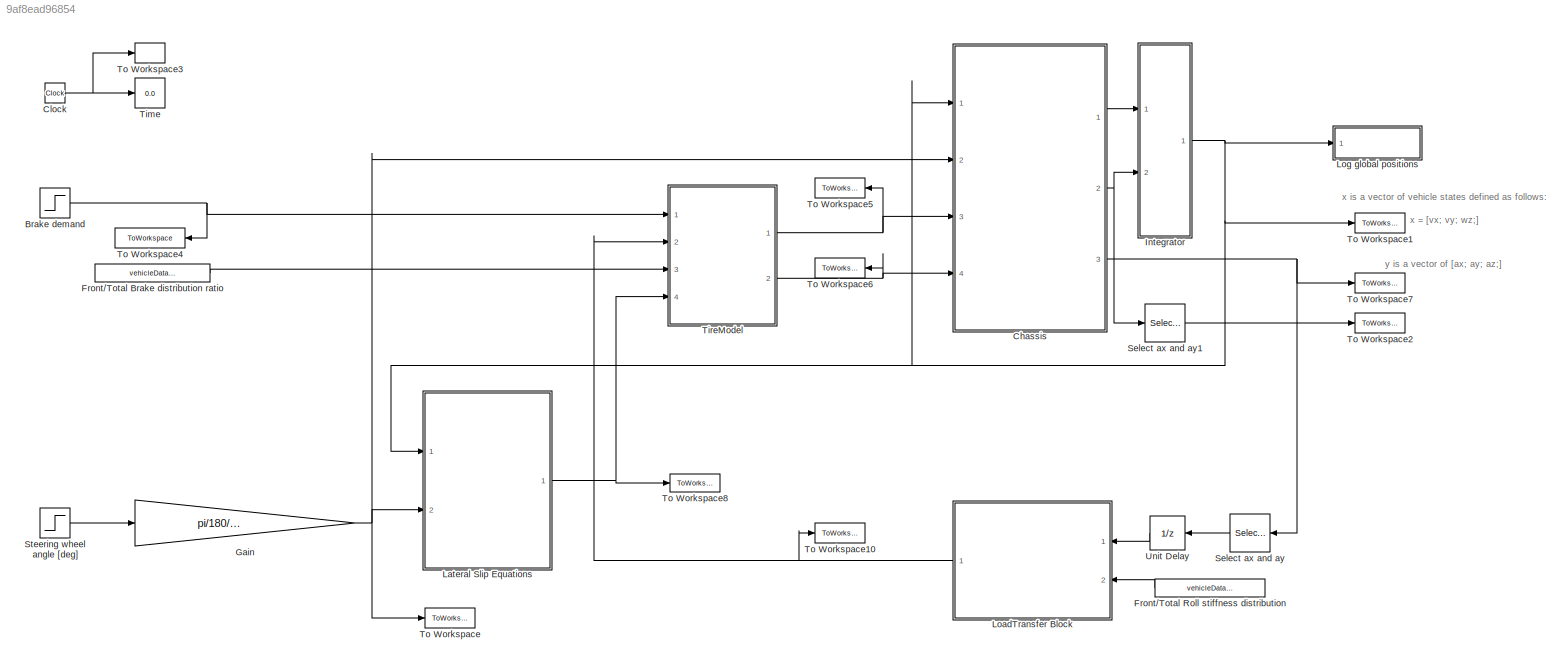
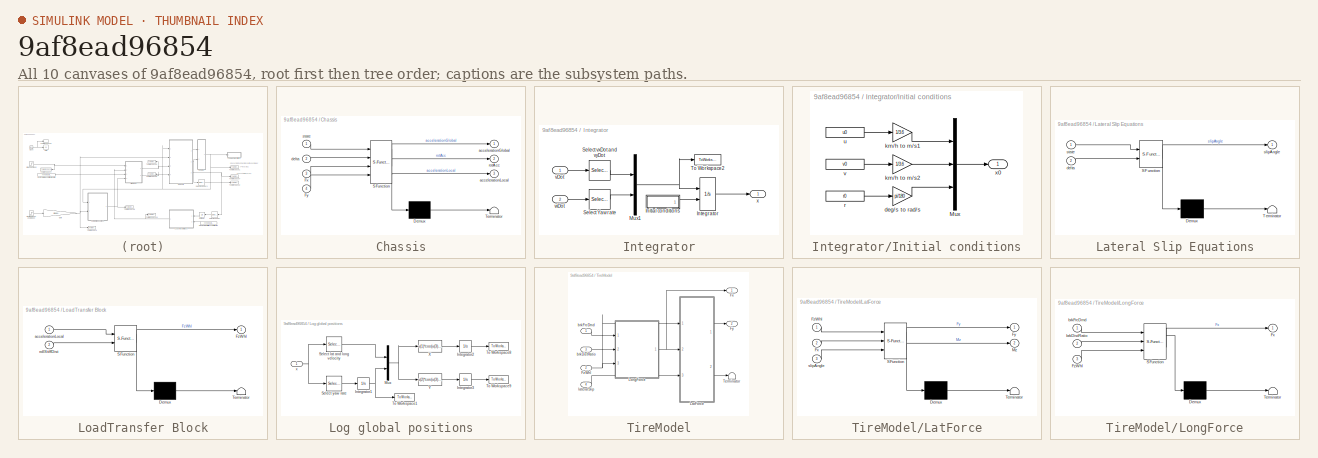
[diagram: thumbnail index - all 10 canvases of the model, root first then tree order]
MODEL slx_9af8ead96854
KIND model
CONFIG AbsTol = auto
CONFIG EnableMultiTasking = on
CONFIG FixedStep = sampleTime
CONFIG InitFcn = cd(fileparts(which(gcs)))\n\nrun ./InitModel.m;
CONFIG MaxStep = auto
CONFIG MinStep = auto
CONFIG RelTol = 1e-3
CONFIG SampleTimeConstraint = Unconstrained
CONFIG SolverName = ode1
CONFIG StartTime = 0.0
CONFIG StopFcn = run ./DrawPath.m;
CONFIG StopTime = simulationTime
BLOCK [Step] Brake demand
  After = vehicleData.brakeDemand
  SampleTime = 0
  Time = 3
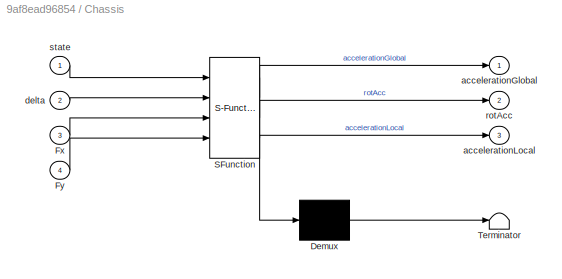
BLOCK [SubSystem] Chassis
  ErrorFcn = Stateflow.Translate.translate
  PermitHierarchicalResolution = ExplicitOnly
  Ports = [4, 3]
  RequestExecContextInheritance = off
  SFBlockType = MATLAB Function
  TreatAsAtomicUnit = on
BLOCK [Demux] Chassis/ Demux 
  Outputs = 1
  Ports = [1, 1]
BLOCK [S-Function] Chassis/ SFunction 
  EnableBusSupport = off
  FunctionName = sf_sfun
  Parameters = vehicleData
  PortCounts = [4 4]
  Ports = [4, 4]
  SFcnIsStateOwnerBlock = off
  SFunctionDeploymentMode = off
  Tag = Stateflow S-Function 21
BLOCK [Terminator] Chassis/ Terminator 
BLOCK [Inport] Chassis/Fx
  Port = 3
BLOCK [Inport] Chassis/Fy
  Port = 4
BLOCK [Outport] Chassis/accelerationGlobal
  VectorParamsAs1DForOutWhenUnconnected = off
BLOCK [Outport] Chassis/accelerationLocal
  Port = 3
  VectorParamsAs1DForOutWhenUnconnected = off
BLOCK [Inport] Chassis/delta
  Port = 2
BLOCK [Outport] Chassis/rotAcc
  Port = 2
  VectorParamsAs1DForOutWhenUnconnected = off
BLOCK [Inport] Chassis/state
BLOCK [Clock] Clock
BLOCK [Constant] Front//Total Brake distribution ratio
  Value = vehicleData.brakeDist
BLOCK [Constant] Front//Total Roll stiffness distribution
  Value = vehicleData.pRollDist
BLOCK [Gain] Gain
  Gain = pi/180/vehicleData.steeringRatio
BLOCK [SubSystem] Integrator
  Ports = [2, 1]
  RequestExecContextInheritance = off
BLOCK [SubSystem] Integrator/Initial conditions
  NameLocation = top
  Ports = [0, 1]
  RequestExecContextInheritance = off
BLOCK [Mux] Integrator/Initial conditions/Mux
  DisplayOption = bar
  Inputs = 3
  Ports = [3, 1]
BLOCK [Gain] Integrator/Initial conditions/deg//s to rad//s
  Gain = pi/180
BLOCK [Gain] Integrator/Initial conditions/km//h to m//s1
  Gain = 1/3.6
BLOCK [Gain] Integrator/Initial conditions/km//h to m//s2
  Gain = 1/3.6
BLOCK [Constant] Integrator/Initial conditions/r
  Value = r0
BLOCK [Constant] Integrator/Initial conditions/u
  Value = u0
BLOCK [Constant] Integrator/Initial conditions/v
  Value = v0
BLOCK [Outport] Integrator/Initial conditions/x0
  VectorParamsAs1DForOutWhenUnconnected = off
BLOCK [Integrator] Integrator/Integrator
  InitialConditionSource = external
  Ports = [2, 1]
BLOCK [Mux] Integrator/Mux1
  DisplayOption = bar
  Inputs = 2
  Ports = [2, 1]
BLOCK [Selector] Integrator/Select Yaw rate
  IndexOptions = Index vector (dialog)
  Indices = [3]
  InputPortWidth = 3
  OutputSizes = 1
  Ports = [1, 1]
BLOCK [Selector] Integrator/Select vxDot and vyDot
  IndexOptions = Index vector (dialog)
  Indices = [1 2]
  InputPortWidth = 3
  OutputSizes = 1
  Ports = [1, 1]
BLOCK [ToWorkspace] Integrator/To Workspace2
  MaxDataPoints = inf
  Ports = [1]
  SampleTime = sampleTime
  VariableName = dx
BLOCK [Inport] Integrator/vDot
BLOCK [Inport] Integrator/wDot
  Port = 2
BLOCK [Outport] Integrator/x
  VectorParamsAs1DForOutWhenUnconnected = off
BLOCK [SubSystem] Lateral Slip Equations
  ErrorFcn = Stateflow.Translate.translate
  PermitHierarchicalResolution = ExplicitOnly
  Ports = [2, 1]
  RequestExecContextInheritance = off
  SFBlockType = MATLAB Function
  TreatAsAtomicUnit = on
BLOCK [Demux] Lateral Slip Equations/ Demux 
  Outputs = 1
  Ports = [1, 1]
BLOCK [S-Function] Lateral Slip Equations/ SFunction 
  EnableBusSupport = off
  FunctionName = sf_sfun
  Parameters = vehicleData
  PortCounts = [2 2]
  Ports = [2, 2]
  SFcnIsStateOwnerBlock = off
  SFunctionDeploymentMode = off
  Tag = Stateflow S-Function 22
BLOCK [Terminator] Lateral Slip Equations/ Terminator 
BLOCK [Inport] Lateral Slip Equations/delta
  Port = 2
BLOCK [Outport] Lateral Slip Equations/slipAngle
  VectorParamsAs1DForOutWhenUnconnected = off
BLOCK [Inport] Lateral Slip Equations/state
BLOCK [SubSystem] LoadTransfer Block
  ErrorFcn = Stateflow.Translate.translate
  PermitHierarchicalResolution = ExplicitOnly
  Ports = [2, 1]
  RequestExecContextInheritance = off
  SFBlockType = MATLAB Function
  TreatAsAtomicUnit = on
BLOCK [Demux] LoadTransfer Block/ Demux 
  Outputs = 1
  Ports = [1, 1]
BLOCK [S-Function] LoadTransfer Block/ SFunction 
  EnableBusSupport = off
  FunctionName = sf_sfun
  Parameters = vehicleData
  PortCounts = [2 2]
  Ports = [2, 2]
  SFcnIsStateOwnerBlock = off
  SFunctionDeploymentMode = off
  Tag = Stateflow S-Function 23
BLOCK [Terminator] LoadTransfer Block/ Terminator 
BLOCK [Outport] LoadTransfer Block/FzWhl
  VectorParamsAs1DForOutWhenUnconnected = off
BLOCK [Inport] LoadTransfer Block/accelerationLocal
BLOCK [Inport] LoadTransfer Block/rollStiffDist
  Port = 2
BLOCK [SubSystem] Log global positions
  Ports = [1]
  RequestExecContextInheritance = off
BLOCK [Integrator] Log global positions/Integrator1
  Ports = [1, 1]
BLOCK [Integrator] Log global positions/Integrator2
  Ports = [1, 1]
BLOCK [Integrator] Log global positions/Integrator3
  Ports = [1, 1]
BLOCK [Mux] Log global positions/Mux
  DisplayOption = bar
  Inputs = 2
  Ports = [2, 1]
BLOCK [Selector] Log global positions/Select lat and long velocity
  IndexOptions = Index vector (dialog)
  Indices = [1 2]
  InputPortWidth = 3
  OutputSizes = 1
  Ports = [1, 1]
BLOCK [Selector] Log global positions/Select yaw rate
  IndexOptions = Index vector (dialog)
  Indices = 3
  InputPortWidth = 3
  OutputSizes = 1
  Ports = [1, 1]
BLOCK [ToWorkspace] Log global positions/To Workspace1
  MaxDataPoints = inf
  Ports = [1]
  SampleTime = sampleTime
  VariableName = psi
BLOCK [ToWorkspace] Log global positions/To Workspace8
  MaxDataPoints = inf
  Ports = [1]
  SampleTime = sampleTime
  VariableName = X
BLOCK [ToWorkspace] Log global positions/To Workspace9
  MaxDataPoints = inf
  Ports = [1]
  SampleTime = sampleTime
  VariableName = Y
BLOCK [Fcn] Log global positions/X
  Expr = u(1)*cos(u(3)) - u(2)*sin(u(3))
BLOCK [Fcn] Log global positions/Y
  Expr = u(2)*cos(u(3)) + u(1)*sin(u(3))
BLOCK [Inport] Log global positions/x
BLOCK [Selector] Select ax and ay
  IndexOptions = Index vector (dialog)
  Indices = [1 2]
  InputPortWidth = 3
  OutputSizes = 1
  Ports = [1, 1]
BLOCK [Selector] Select ax and ay1
  IndexOptions = Index vector (dialog)
  Indices = [3]
  InputPortWidth = 3
  OutputSizes = 1
  Ports = [1, 1]
BLOCK [Step] Steering wheel angle [deg]
  After = SWA
  SampleTime = 0
  Time = 3
BLOCK [Display] Time
  Decimation = 1
  Ports = [1]
BLOCK [SubSystem] TireModel
  Ports = [4, 2]
  RequestExecContextInheritance = off
BLOCK [Outport] TireModel/Fx
  VectorParamsAs1DForOutWhenUnconnected = off
BLOCK [Outport] TireModel/Fy
  Port = 2
  VectorParamsAs1DForOutWhenUnconnected = off
BLOCK [Inport] TireModel/FzWhl
  Port = 2
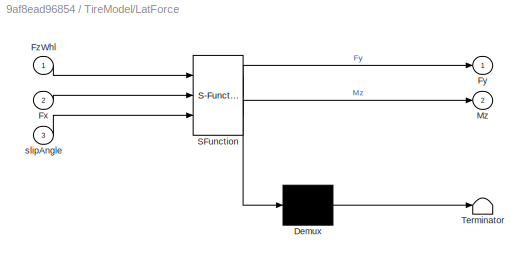
BLOCK [SubSystem] TireModel/LatForce
  ErrorFcn = Stateflow.Translate.translate
  PermitHierarchicalResolution = ExplicitOnly
  Ports = [3, 2]
  RequestExecContextInheritance = off
  SFBlockType = MATLAB Function
  TreatAsAtomicUnit = on
BLOCK [Demux] TireModel/LatForce/ Demux 
  Outputs = 1
  Ports = [1, 1]
BLOCK [S-Function] TireModel/LatForce/ SFunction 
  EnableBusSupport = off
  FunctionName = sf_sfun
  Parameters = vehicleData
  PortCounts = [3 3]
  Ports = [3, 3]
  SFcnIsStateOwnerBlock = off
  SFunctionDeploymentMode = off
  Tag = Stateflow S-Function 2
BLOCK [Terminator] TireModel/LatForce/ Terminator 
BLOCK [Inport] TireModel/LatForce/Fx
  Port = 2
BLOCK [Outport] TireModel/LatForce/Fy
  VectorParamsAs1DForOutWhenUnconnected = off
BLOCK [Inport] TireModel/LatForce/FzWhl
BLOCK [Outport] TireModel/LatForce/Mz
  Port = 2
  VectorParamsAs1DForOutWhenUnconnected = off
BLOCK [Inport] TireModel/LatForce/slipAngle
  Port = 3
BLOCK [SubSystem] TireModel/LongForce
  ErrorFcn = Stateflow.Translate.translate
  PermitHierarchicalResolution = ExplicitOnly
  Ports = [3, 1]
  RequestExecContextInheritance = off
  SFBlockType = MATLAB Function
  TreatAsAtomicUnit = on
BLOCK [Demux] TireModel/LongForce/ Demux 
  Outputs = 1
  Ports = [1, 1]
BLOCK [S-Function] TireModel/LongForce/ SFunction 
  EnableBusSupport = off
  FunctionName = sf_sfun
  PortCounts = [3 2]
  Ports = [3, 2]
  SFcnIsStateOwnerBlock = off
  SFunctionDeploymentMode = off
  Tag = Stateflow S-Function 1
BLOCK [Terminator] TireModel/LongForce/ Terminator 
BLOCK [Outport] TireModel/LongForce/Fx
  VectorParamsAs1DForOutWhenUnconnected = off
BLOCK [Inport] TireModel/LongForce/FzWhl
  Port = 3
BLOCK [Inport] TireModel/LongForce/brkDistRatio
  Port = 2
BLOCK [Inport] TireModel/LongForce/brkFrcDmd
BLOCK [Terminator] TireModel/Terminator
BLOCK [Inport] TireModel/brkDistRatio
  Port = 3
BLOCK [Inport] TireModel/brkFrcDmd
BLOCK [Inport] TireModel/lateralSlip
  Port = 4
BLOCK [ToWorkspace] To Workspace
  MaxDataPoints = inf
  Ports = [1]
  SampleTime = sampleTime
  VariableName = delta
BLOCK [ToWorkspace] To Workspace1
  MaxDataPoints = inf
  Ports = [1]
  SampleTime = sampleTime
  VariableName = x
BLOCK [ToWorkspace] To Workspace10
  MaxDataPoints = inf
  Ports = [1]
  SampleTime = sampleTime
  VariableName = FzWheel
BLOCK [ToWorkspace] To Workspace2
  MaxDataPoints = inf
  Ports = [1]
  SampleTime = sampleTime
  VariableName = psip2
BLOCK [ToWorkspace] To Workspace3
  MaxDataPoints = inf
  Ports = [1]
  SampleTime = sampleTime
  VariableName = t
BLOCK [ToWorkspace] To Workspace4
  MaxDataPoints = inf
  Ports = [1]
  SampleTime = sampleTime
  VariableName = brakeFrcDmd
BLOCK [ToWorkspace] To Workspace5
  MaxDataPoints = inf
  Ports = [1]
  SampleTime = sampleTime
  VariableName = Fxw
BLOCK [ToWorkspace] To Workspace6
  MaxDataPoints = inf
  Ports = [1]
  SampleTime = sampleTime
  VariableName = Fyw
BLOCK [ToWorkspace] To Workspace7
  MaxDataPoints = inf
  Ports = [1]
  SampleTime = sampleTime
  VariableName = y
BLOCK [ToWorkspace] To Workspace8
  MaxDataPoints = inf
  Ports = [1]
  SampleTime = sampleTime
  VariableName = slipAngle
BLOCK [UnitDelay] Unit Delay
  HasFrameUpgradeWarning = on
  SampleTime = -1
ANNOTATION (root): x is a vector of vehicle states defined as follows: x = [vx; vy; wz;]
ANNOTATION (root): y is a vector of [ax; ay; az;]
NET Brake demand:1 -> TireModel:1, To Workspace4:1
LINE Chassis:1 -> Integrator:1
NET Chassis:2 -> Integrator:2, Select ax and ay1:1
NET Chassis:3 -> Select ax and ay:1, To Workspace7:1
NET Clock:1 -> Time:1, To Workspace3:1
LINE Front//Total Brake distribution ratio:1 -> TireModel:3
LINE Front//Total Roll stiffness distribution:1 -> LoadTransfer Block:2
NET Gain:1 -> Chassis:2, Lateral Slip Equations:2, To Workspace:1
LINE Integrator/Initial conditions/Mux:1 -> Integrator/Initial conditions/x0:1
LINE Integrator/Initial conditions/deg//s to rad//s:1 -> Integrator/Initial conditions/Mux:3
LINE Integrator/Initial conditions/km//h to m//s1:1 -> Integrator/Initial conditions/Mux:1
LINE Integrator/Initial conditions/km//h to m//s2:1 -> Integrator/Initial conditions/Mux:2
LINE Integrator/Initial conditions/r:1 -> Integrator/Initial conditions/deg//s to rad//s:1
LINE Integrator/Initial conditions/u:1 -> Integrator/Initial conditions/km//h to m//s1:1
LINE Integrator/Initial conditions/v:1 -> Integrator/Initial conditions/km//h to m//s2:1
LINE Integrator/Initial conditions:1 -> Integrator/Integrator:2
LINE Integrator/Integrator:1 -> Integrator/x:1
NET Integrator/Mux1:1 -> Integrator/Integrator:1, Integrator/To Workspace2:1
LINE Integrator/Select Yaw rate:1 -> Integrator/Mux1:2
LINE Integrator/Select vxDot and vyDot:1 -> Integrator/Mux1:1
LINE Integrator/vDot:1 -> Integrator/Select vxDot and vyDot:1
LINE Integrator/wDot:1 -> Integrator/Select Yaw rate:1
NET Integrator:1 -> Chassis:1, Lateral Slip Equations:1, Log global positions:1, To Workspace1:1
NET Lateral Slip Equations:1 -> TireModel:4, To Workspace8:1
NET LoadTransfer Block:1 -> TireModel:2, To Workspace10:1
NET Log global positions/Integrator1:1 -> Log global positions/Mux:2, Log global positions/To Workspace1:1
LINE Log global positions/Integrator2:1 -> Log global positions/To Workspace8:1
LINE Log global positions/Integrator3:1 -> Log global positions/To Workspace9:1
NET Log global positions/Mux:1 -> Log global positions/X:1, Log global positions/Y:1
LINE Log global positions/Select lat and long velocity:1 -> Log global positions/Mux:1
LINE Log global positions/Select yaw rate:1 -> Log global positions/Integrator1:1
LINE Log global positions/X:1 -> Log global positions/Integrator2:1
LINE Log global positions/Y:1 -> Log global positions/Integrator3:1
NET Log global positions/x:1 -> Log global positions/Select lat and long velocity:1, Log global positions/Select yaw rate:1
LINE Select ax and ay1:1 -> To Workspace2:1
LINE Select ax and ay:1 -> Unit Delay:1
LINE Steering wheel angle [deg]:1 -> Gain:1
NET TireModel/FzWhl:1 -> TireModel/LatForce:1, TireModel/LongForce:3
LINE TireModel/LatForce:1 -> TireModel/Fy:1
LINE TireModel/LatForce:2 -> TireModel/Terminator:1
NET TireModel/LongForce:1 -> TireModel/Fx:1, TireModel/LatForce:2
LINE TireModel/brkDistRatio:1 -> TireModel/LongForce:2
LINE TireModel/brkFrcDmd:1 -> TireModel/LongForce:1
LINE TireModel/lateralSlip:1 -> TireModel/LatForce:3
NET TireModel:1 -> Chassis:3, To Workspace5:1
NET TireModel:2 -> Chassis:4, To Workspace6:1
LINE Unit Delay:1 -> LoadTransfer Block:1
note: NET lines group one-source signal fan-out (src -> all destinations, sorted); 1:1 wires keep LINE
CHART TireModel/LongForce states=1 transitions=1
  STATE_LABEL 'eML_blk_kernel()'
  STATE_LABEL 'SCRIPT:\nfunction Fx  = LongForce(brkFrcDmd,brkDistRatio,FzWhl)\n    % Inputs:\n    %   FzWhl        - Normal load on tires [N]\n    %   brkDistRatio - Front to total brake distribution ratio [-]\n    %   brkFrcDmd    - Total brake force demand\n    % Outputs:\n    %   Fx           - A [2x1] vector with axle longitudinal forces [N]\n    \n    %%========================DO NOT CHANGE THIS====================...<+935ch>'
CHART TireModel/LatForce states=1 transitions=1
  STATE_LABEL 'eML_blk_kernel()'
  STATE_LABEL 'SCRIPT:\nfunction [Fy,Mz]  = LatForce(FzWhl,Fx,slipAngle,vehicleData)\n%#codegen\n    %   <copyright redacted>\n    %   Created: 2019-11-18\n    % Inputs:\n    %   FzWhl      - Normal load on tires [N]\n    %   Fx         - Longitudinal force vector [N]\n    %   slipAngle  - Slip angle vector [rad]\n    % Outputs:\n    %   Fy         - A [2x1] vector with axle lateral forces [N]\n    %   Mz         - Dummy valu...<+3012ch>'
CHART Chassis states=1 transitions=1
  STATE_LABEL 'eML_blk_kernel()'
  STATE_LABEL 'SCRIPT:\nfunction [accelerationGlobal,rotAcc,accelerationLocal] = VehDynModel(state,delta,Fx,Fy,vehicleData)\n    %   <copyright redacted>\n    %   Created: 2019-11-18\n    % Inputs:\n    %   state  - state vector\n    %   delta  - steering wheel angle [rad]\n    %   Fx     - Vector of forces from the wheels in x-direction\n    %   Fy     - Vector of forces from the wheels in y-direction\n    % Outputs: \n    ...<+1774ch>'
CHART Lateral Slip Equations states=1 transitions=1
  STATE_LABEL 'eML_blk_kernel()'
  STATE_LABEL 'SCRIPT:\nfunction slipAngle   = LateralSlip(state,delta,vehicleData) \n    %   <copyright redacted>\n    %   Created: 2019-11-18\n    % Inputs:\n    %   state     - State vector\n    %   delta     - steering wheel angle [rad]\n    % Outputs:\n    %   slipangle - A [2x1] vector containing the slipratio(0-1) for each axle [-]\n    %\n    %%========================DO NOT CHANGE THIS=============================%%...<+715ch>'
CHART LoadTransfer Block states=1 transitions=1
  STATE_LABEL 'eML_blk_kernel()'
  STATE_LABEL 'SCRIPT:\nfunction FzWhl  = RollModel(accelerationLocal,rollStiffDist,vehicleData)\n    %   <copyright redacted>\n    %   Created: 2019-11-18\n    % Inputs: \n    %   accelerationLocal - vector of vehicle loacl acceleration [ax; ay; az;]\n    %   rollStiffDist     - Roll stiffness distribution 0-1 on the front axle [-]\n    % Outputs: \n    %   FzWhl             - vector of tyre normal forces [N]\n    %\n    % ...<+3047ch>'
CHART  states=0 transitions=0
CHART  states=0 transitions=0
CHART  states=0 transitions=0
CHART  states=0 transitions=0
CHART  states=0 transitions=0
